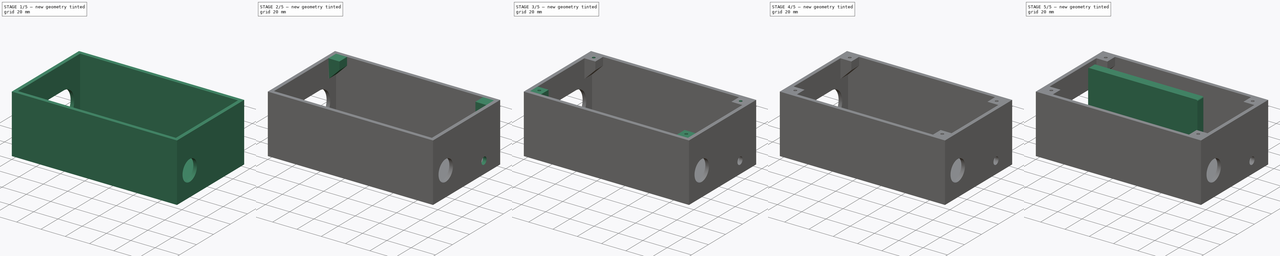
[diagram: build sequence overview — one tinted view per stage of 5, left to right]
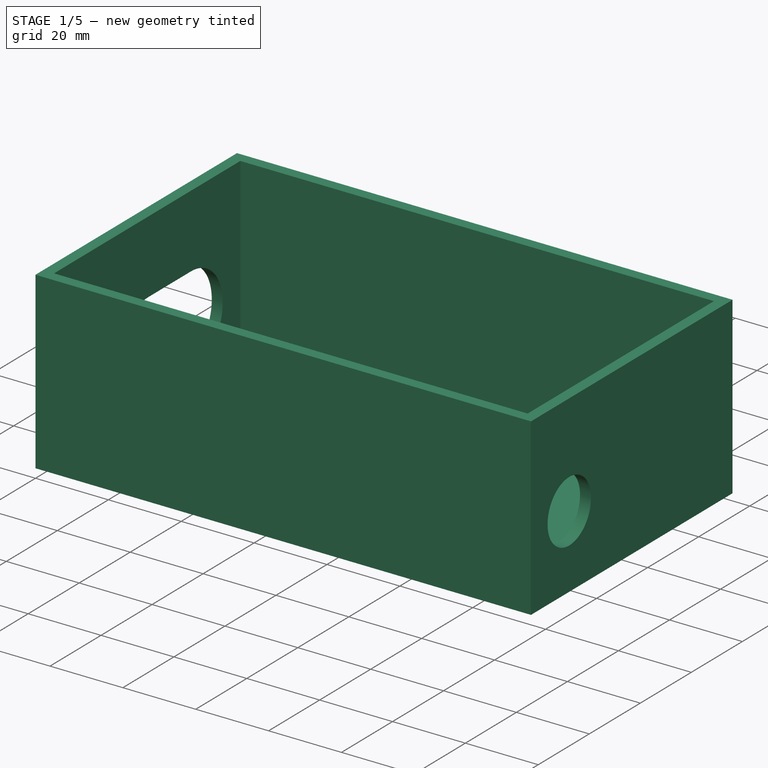
[diagram: stage 1 of 5 — iso view after this stage's code; geometry added in this stage tinted green]
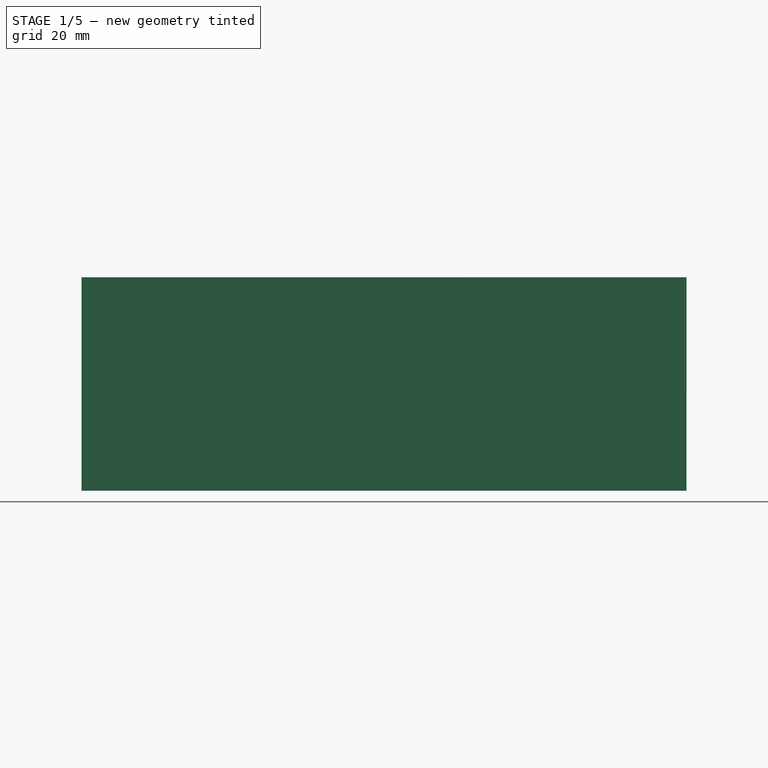
[diagram: stage 1 of 5 — front view after this stage's code; geometry added in this stage tinted green]
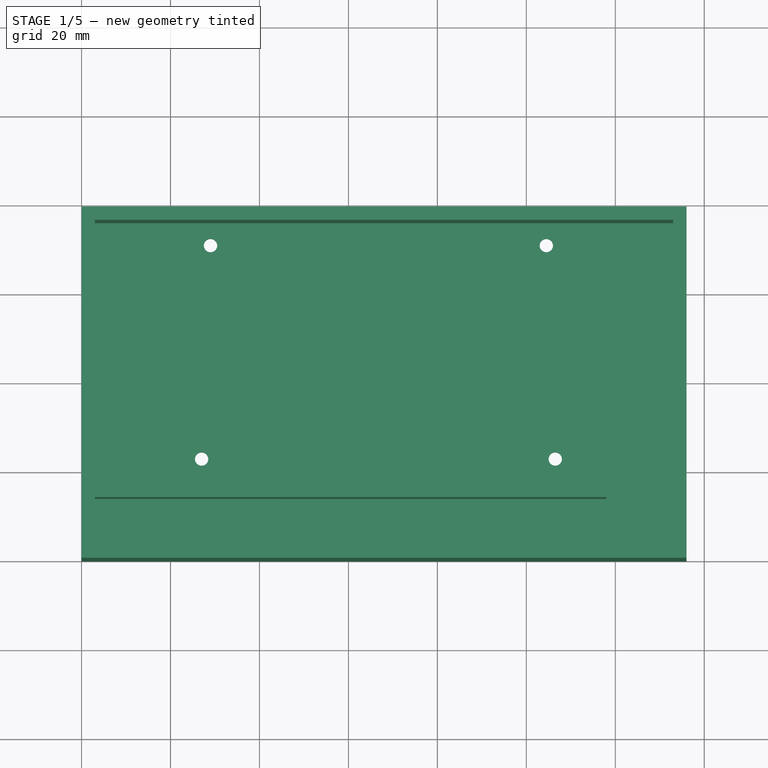
[diagram: stage 1 of 5 — top view after this stage's code; geometry added in this stage tinted green]
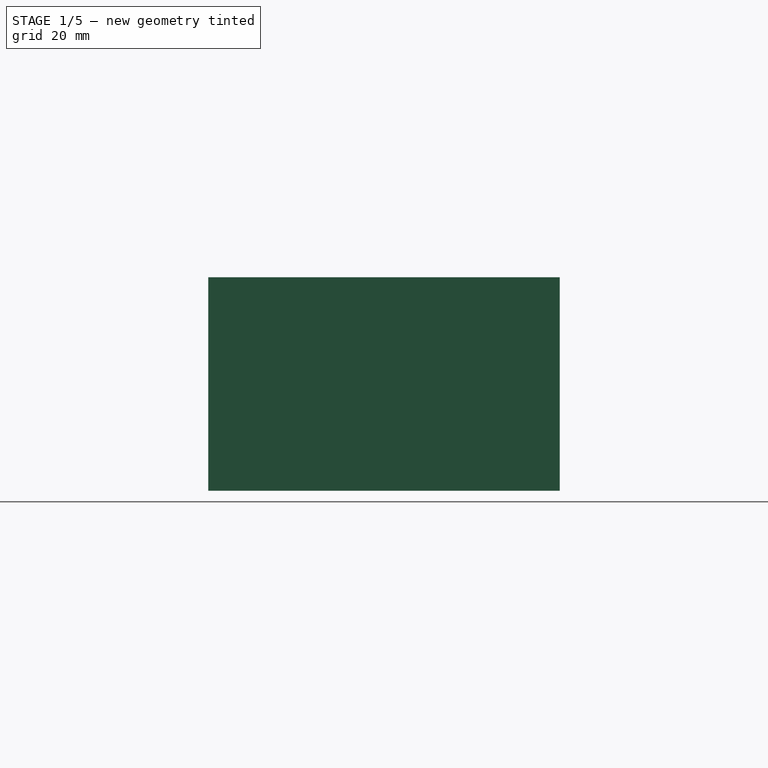
[diagram: stage 1 of 5 — right view after this stage's code; geometry added in this stage tinted green]
FCSTD DOCUMENT  (FreeCAD 0.19R24291 (Git))
Label: Proto_V3
License: All rights reserved
LicenseURL: http://en.wikipedia.org/wiki/All_rights_reserved
objects: Sketcher::SketchObject×16, PartDesign::Pad×8, PartDesign::Pocket×6, PartDesign::Fillet×6, PartDesign::Chamfer×6, PartDesign::Hole×2, PartDesign::Body×2
note: 74 computed .brp shape members not serialized (recipe doc carries the construction recipe); baked Part::Feature solids carry a one-line shape summary decoded from their .brp

FEATURE [Sketcher::SketchObject] Sketch  label="Countour"
  FullyConstrained = true
  MapMode = 5
  Support = -> [XY_Plane001]
  sketch-geometry (12):
    g0: LineSegment StartX=0 StartY=0 StartZ=0 EndX=136 EndY=0 EndZ=0
    g1: LineSegment StartX=136 StartY=0 StartZ=0 EndX=136 EndY=79 EndZ=0
    g2: LineSegment StartX=136 StartY=79 StartZ=0 EndX=0 EndY=79 EndZ=0
    g3: LineSegment StartX=0 StartY=79 StartZ=0 EndX=0 EndY=0 EndZ=0
    g4: GeomPoint X=3 Y=76 Z=0
    g5: GeomPoint X=133 Y=76 Z=0
    g6: GeomPoint X=133 Y=3 Z=0
    g7: GeomPoint X=3 Y=3 Z=0
    g8: LineSegment StartX=3 StartY=3 StartZ=0 EndX=133 EndY=3 EndZ=0
    g9: LineSegment StartX=133 StartY=3 StartZ=0 EndX=133 EndY=76 EndZ=0
    g10: LineSegment StartX=133 StartY=76 StartZ=0 EndX=3 EndY=76 EndZ=0
    g11: LineSegment StartX=3 StartY=76 StartZ=0 EndX=3 EndY=3 EndZ=0
  constraints (27):
    c: Coincident(g0,g1)
    c: Coincident(g1,g2)
    c: Coincident(g2,g3)
    c: Coincident(g3,g0)
    c: Horizontal(g0)
    c: Horizontal(g2)
    c: Vertical(g1)
    c: Vertical(g3)
    c: Coincident(g0,g-1)
    c: DistanceX(g2,g2) = 136
    c: DistanceY(g3,g3) = 79
    c: DistanceX(g4) = 3
    c: DistanceY(g4) = 76
    c: DistanceX(g5) = 133
    c: DistanceY(g5) = 76
    c: DistanceX(g6) = 133
    c: DistanceY(g6) = 3
    c: DistanceX(g7) = 3
    c: DistanceY(g7) = 3
    c: Coincident(g8,g7)
    c: Coincident(g8,g6)
    c: Coincident(g9,g8)
    c: Coincident(g9,g5)
    c: Coincident(g10,g9)
    c: Coincident(g10,g4)
    c: Coincident(g11,g10)
    c: Coincident(g11,g8)
FEATURE [Sketcher::SketchObject] Sketch001  label="Fond"
  FullyConstrained = true
  MapMode = 5
  Support = -> [XY_Plane001]
  sketch-geometry (4):
    g0: LineSegment StartX=0 StartY=0 StartZ=0 EndX=136 EndY=0 EndZ=0
    g1: LineSegment StartX=136 StartY=0 StartZ=0 EndX=136 EndY=79 EndZ=0
    g2: LineSegment StartX=136 StartY=79 StartZ=0 EndX=0 EndY=79 EndZ=0
    g3: LineSegment StartX=0 StartY=79 StartZ=0 EndX=0 EndY=0 EndZ=0
  constraints (11):
    c: Coincident(g0,g1)
    c: Coincident(g1,g2)
    c: Coincident(g2,g3)
    c: Coincident(g3,g0)
    c: Horizontal(g0)
    c: Horizontal(g2)
    c: Vertical(g1)
    c: Vertical(g3)
    c: Coincident(g0,g-1)
    c: DistanceX(g2,g2) = 136
    c: DistanceY(g1,g1) = 79
FEATURE [PartDesign::Pad] Pad  label="Pad_fond"
  Direction = (1,1,1)
  Length = 3
  Length2 = 100
  Profile = -> Sketch001
  Type = 0
FEATURE [PartDesign::Pad] Pad001  label="Pad_contour"
  BaseFeature = -> Pad
  Direction = (1,1,1)
  Length = 48
  Length2 = 100
  Profile = -> Sketch
  Type = 0
FEATURE [Sketcher::SketchObject] Sketch002  label="Barrière"
  FullyConstrained = true
  MapMode = 5
  Support = -> [XY_Plane001]
  sketch-geometry (4):
    g0: LineSegment StartX=3 StartY=17 StartZ=0 EndX=118 EndY=17 EndZ=0
    g1: LineSegment StartX=118 StartY=17 StartZ=0 EndX=118 EndY=14 EndZ=0
    g2: LineSegment StartX=118 StartY=14 StartZ=0 EndX=3 EndY=14 EndZ=0
    g3: LineSegment StartX=3 StartY=14 StartZ=0 EndX=3 EndY=17 EndZ=0
  constraints (12):
    c: Coincident(g0,g1)
    c: Coincident(g1,g2)
    c: Coincident(g2,g3)
    c: Coincident(g3,g0)
    c: Horizontal(g0)
    c: Horizontal(g2)
    c: Vertical(g1)
    c: Vertical(g3)
    c: DistanceY(g1,g1) = 3
    c: DistanceX(g2,g2) = 115
    c: DistanceY(g-1,g2) = 14
    c: DistanceX(g-1,g2) = 3
FEATURE [PartDesign::Pad] Pad002  label="Pad_barrière"
  BaseFeature = -> Pad001
  Direction = (1,1,1)
  Length = 30
  Length2 = 100
  Profile = -> Sketch002
  Type = 0
FEATURE [Sketcher::SketchObject] Sketch003  label="Trous_fond"
  FullyConstrained = true
  MapMode = 5
  Support = -> [XY_Plane001]
  sketch-geometry (8):
    g0: GeomPoint X=29 Y=71 Z=0
    g1: GeomPoint X=104.5 Y=71 Z=0
    g2: GeomPoint X=106.5 Y=23 Z=0
    g3: GeomPoint X=27 Y=23 Z=0
    g4: Circle CenterX=29 CenterY=71 CenterZ=0 NormalX=0 NormalY=0 NormalZ=1 AngleXU=0 Radius=1.5
    g5: Circle CenterX=104.5 CenterY=71 CenterZ=0 NormalX=0 NormalY=0 NormalZ=1 AngleXU=0 Radius=1.5
    g6: Circle CenterX=27 CenterY=23 CenterZ=0 NormalX=0 NormalY=0 NormalZ=1 AngleXU=0 Radius=1.5
    g7: Circle CenterX=106.5 CenterY=23 CenterZ=0 NormalX=0 NormalY=0 NormalZ=1 AngleXU=0 Radius=1.5
  constraints (16):
    c: DistanceX(g0) = 29
    c: DistanceY(g0) = 71
    c: DistanceX(g1) = 104.5
    c: DistanceY(g1) = 71
    c: Coincident(g4,g0)
    c: Coincident(g5,g1)
    c: Coincident(g6,g3)
    c: Coincident(g7,g2)
    c: Radius(g4) = 1.5
    c: Radius(g5) = 1.5
    c: Radius(g6) = 1.5
    c: Radius(g7) = 1.5
    c: DistanceY(g7,g5) = 48
    c: DistanceX(g5,g7) = 2
    c: DistanceY(g6,g4) = 48
    c: DistanceX(g6,g4) = 2
FEATURE [PartDesign::Pocket] Pocket  label="Trous_arduino"
  BaseFeature = -> Pad002
  Length = 5
  Length2 = 100
  Profile = -> Sketch003
  Reversed = true
  Type = 1
FEATURE [Sketcher::SketchObject] Sketch004  label="Ouverture"
  FullyConstrained = false
  MapMode = 5
  Placement = pos=(0,0,0) rot=(0.57735,0.57735,0.57735;2.0944rad)
  Support = -> [YZ_Plane001]
  sketch-geometry (4):
    g0: ArcOfCircle CenterX=40 CenterY=15.5 CenterZ=0 NormalX=0 NormalY=0 NormalZ=1 AngleXU=0 Radius=12.5 StartAngle=1.5708 EndAngle=4.71239
    g1: ArcOfCircle CenterX=56.6016 CenterY=15.5 CenterZ=0 NormalX=0 NormalY=0 NormalZ=1 AngleXU=0 Radius=12.5 StartAngle=4.71239 EndAngle=7.85398
    g2: LineSegment StartX=40 StartY=3 StartZ=0 EndX=56.6016 EndY=3 EndZ=0
    g3: LineSegment StartX=40 StartY=28 StartZ=0 EndX=56.6016 EndY=28 EndZ=0
  constraints (9):
    c: Tangent(g0,g3) = 1.5708
    c: Tangent(g0,g2) = -1.5708
    c: Tangent(g2,g1) = -1.5708
    c: Tangent(g3,g1) = 1.5708
    c: Horizontal(g2)
    c: Equal(g0,g1)
    c: DistanceY(g-1,g0) = 3
    c: DistanceX(g-1,g0) = 40
    c: DistanceY(g1,g1) = 25
FEATURE [PartDesign::Pocket] Pocket001  label="Trou_ouverture"
  BaseFeature = -> Pocket
  Length = 0
  Length2 = 100
  Profile = -> Sketch004
  Reversed = true
  Type = 2
FEATURE [Sketcher::SketchObject] Sketch006  label="Cablage_batterie"
  FullyConstrained = true
  MapMode = 5
  Placement = pos=(136,0,0) rot=(0.57735,0.57735,0.57735;2.0944rad)
  Support = -> [Pocket001]
  sketch-geometry (2):
    g0: GeomPoint X=15 Y=20 Z=0
    g1: Circle CenterX=15 CenterY=20 CenterZ=0 NormalX=0 NormalY=0 NormalZ=1 AngleXU=0 Radius=8.5
  constraints (4):
    c: DistanceX(g0) = 15
    c: DistanceY(g0) = 20
    c: Coincident(g1,g0)
    c: Radius(g1) = 8.5
FEATURE [PartDesign::Pocket] Pocket002  label="Trou_cablage"
  BaseFeature = -> Pocket001
  Length = 5
  Length2 = 100
  Profile = -> Sketch006
  Type = 2
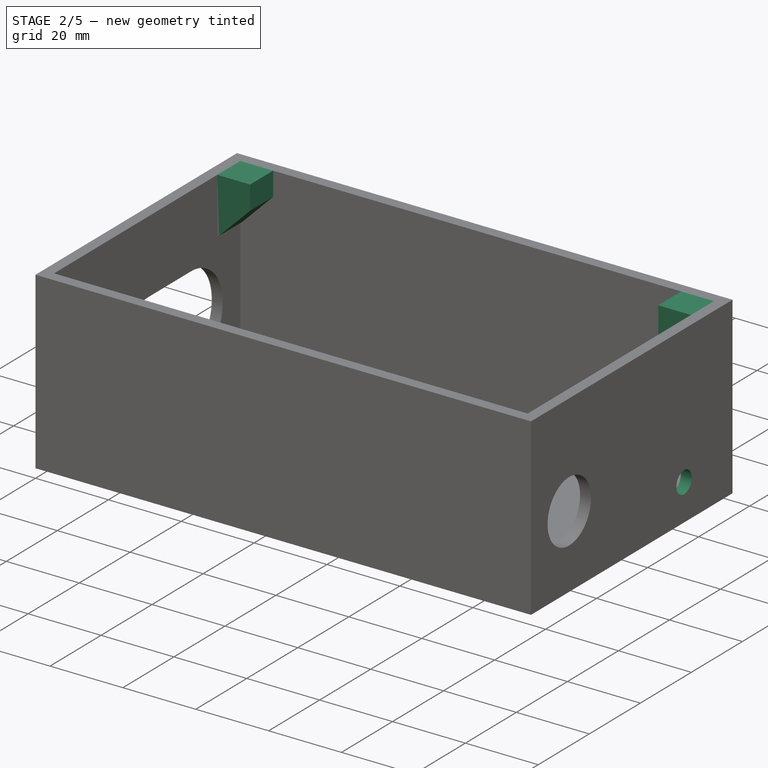
[diagram: stage 2 of 5 — iso view after this stage's code; geometry added in this stage tinted green]
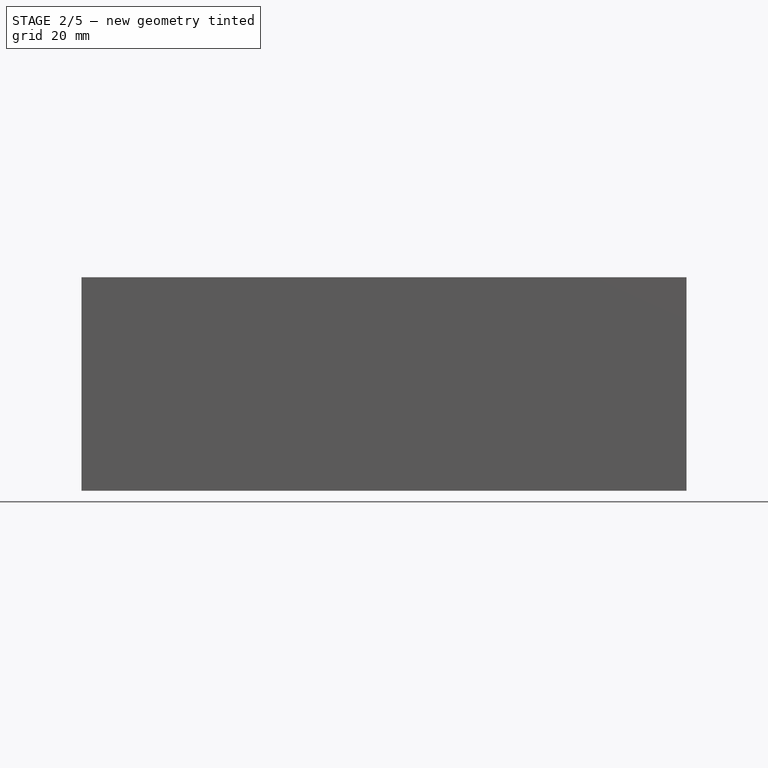
[diagram: stage 2 of 5 — front view after this stage's code; geometry added in this stage tinted green]
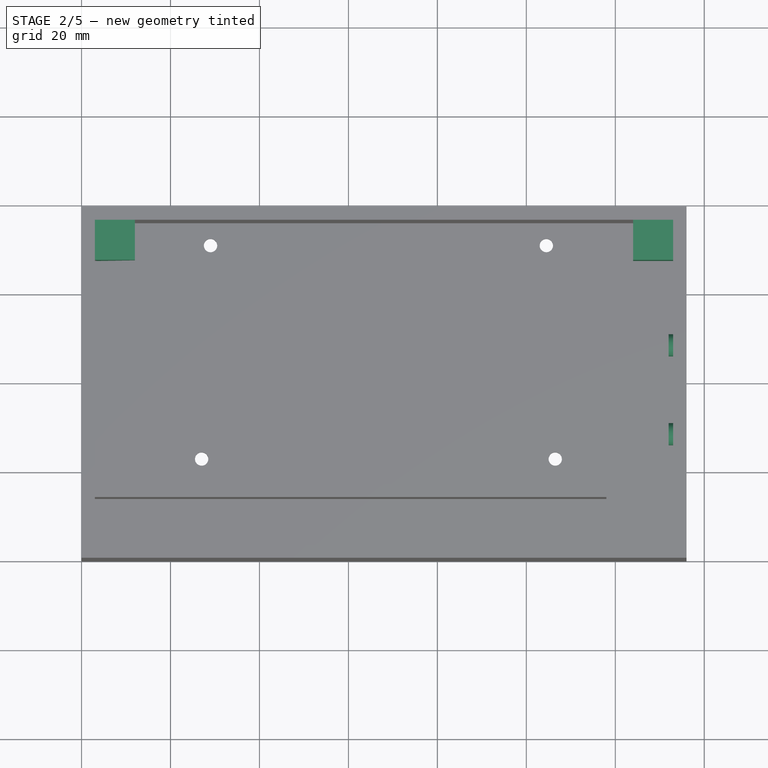
[diagram: stage 2 of 5 — top view after this stage's code; geometry added in this stage tinted green]
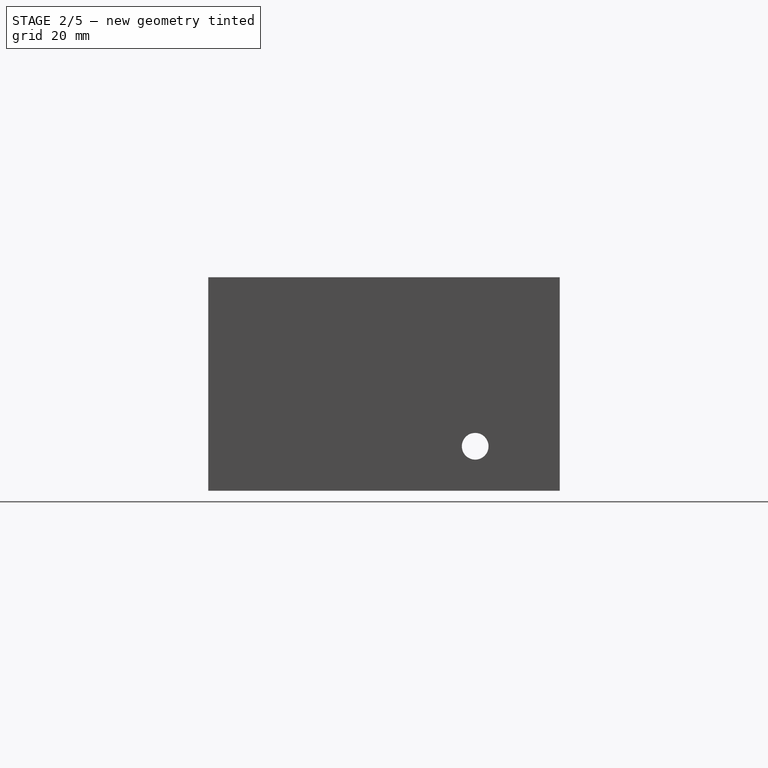
[diagram: stage 2 of 5 — right view after this stage's code; geometry added in this stage tinted green]
FEATURE [Sketcher::SketchObject] Sketch007  label="Interrupteur"
  FullyConstrained = true
  MapMode = 5
  Placement = pos=(136,0,0) rot=(0.57735,0.57735,0.57735;2.0944rad)
  Support = -> [Pocket002]
  sketch-geometry (2):
    g0: GeomPoint X=60 Y=10 Z=0
    g1: Circle CenterX=60 CenterY=10 CenterZ=0 NormalX=0 NormalY=0 NormalZ=1 AngleXU=0 Radius=3
  constraints (4):
    c: DistanceX(g0) = 60
    c: DistanceY(g0) = 10
    c: Coincident(g1,g0)
    c: Radius(g1) = 3
FEATURE [PartDesign::Pocket] Pocket003  label="Trou_interrupteur"
  BaseFeature = -> Pocket002
  Length = 5
  Length2 = 100
  Profile = -> Sketch007
  Type = 2
FEATURE [Sketcher::SketchObject] Sketch008  label="IMU"
  FullyConstrained = true
  MapMode = 5
  Placement = pos=(133,0,0) rot=(0.57735,-0.57735,-0.57735;2.0944rad)
  Support = -> [Pocket003]
  sketch-geometry (4):
    g0: GeomPoint X=-48 Y=35 Z=0
    g1: GeomPoint X=-28 Y=35 Z=0
    g2: Circle CenterX=-48 CenterY=35 CenterZ=0 NormalX=0 NormalY=0 NormalZ=1 AngleXU=0 Radius=1.25
    g3: Circle CenterX=-28 CenterY=35 CenterZ=0 NormalX=0 NormalY=0 NormalZ=1 AngleXU=0 Radius=1.25
  constraints (8):
    c: DistanceX(g0) = -48
    c: DistanceY(g0) = 35
    c: DistanceX(g1) = -28
    c: DistanceY(g1) = 35
    c: Coincident(g2,g0)
    c: Coincident(g3,g1)
    c: Radius(g2) = 1.25
    c: Radius(g3) = 1.25
FEATURE [Sketcher::SketchObject] Sketch009  label="Support_IMU"
  FullyConstrained = true
  MapMode = 5
  Placement = pos=(133,0,0) rot=(0.57735,-0.57735,-0.57735;2.0944rad)
  Support = -> [Pocket003]
  sketch-geometry (4):
    g0: GeomPoint X=-48 Y=35 Z=0
    g1: GeomPoint X=-28 Y=35 Z=0
    g2: Circle CenterX=-48 CenterY=35 CenterZ=0 NormalX=0 NormalY=0 NormalZ=1 AngleXU=0 Radius=2.5
    g3: Circle CenterX=-28 CenterY=35 CenterZ=0 NormalX=0 NormalY=0 NormalZ=1 AngleXU=0 Radius=2.5
  constraints (8):
    c: DistanceX(g0) = -48
    c: DistanceY(g0) = 35
    c: DistanceX(g1) = -28
    c: DistanceY(g1) = 35
    c: Coincident(g2,g0)
    c: Coincident(g3,g1)
    c: Radius(g2) = 2.5
    c: Radius(g3) = 2.5
FEATURE [PartDesign::Pad] Pad003  label="Pad_IMU"
  BaseFeature = -> Pocket003
  Direction = (1,1,1)
  Length = 1
  Length2 = 100
  Profile = -> Sketch009
  Type = 0
FEATURE [PartDesign::Pocket] Pocket004  label="Trous_IMU"
  BaseFeature = -> Pad003
  Length = 5
  Length2 = 100
  Profile = -> Sketch008
  Reversed = true
  Type = 0
FEATURE [Sketcher::SketchObject] Sketch010  label="Support_couvercleD"
  FullyConstrained = true
  MapMode = 5
  Placement = pos=(0,76,0) rot=(1,0,0;1.5708rad)
  sketch-geometry (10):
    g0: GeomPoint X=3 Y=48 Z=0
    g1: LineSegment StartX=3 StartY=48 StartZ=0 EndX=12 EndY=48 EndZ=0
    g2: LineSegment StartX=12 StartY=48 StartZ=0 EndX=12 EndY=33 EndZ=0
    g3: LineSegment StartX=12 StartY=33 StartZ=0 EndX=3 EndY=33 EndZ=0
    g4: LineSegment StartX=3 StartY=33 StartZ=0 EndX=3 EndY=48 EndZ=0
    g5: GeomPoint X=133 Y=48 Z=0
    g6: LineSegment StartX=133 StartY=48 StartZ=0 EndX=124 EndY=48 EndZ=0
    g7: LineSegment StartX=124 StartY=48 StartZ=0 EndX=124 EndY=33 EndZ=0
    g8: LineSegment StartX=124 StartY=33 StartZ=0 EndX=133 EndY=33 EndZ=0
    g9: LineSegment StartX=133 StartY=33 StartZ=0 EndX=133 EndY=48 EndZ=0
  constraints (26):
    c: DistanceX(g0) = 3
    c: DistanceY(g0) = 48
    c: Coincident(g1,g2)
    c: Coincident(g2,g3)
    c: Coincident(g3,g4)
    c: Coincident(g4,g1)
    c: Horizontal(g1)
    c: Horizontal(g3)
    c: Vertical(g2)
    c: Vertical(g4)
    c: Coincident(g1,g0)
    c: DistanceX(g1,g1) = 9
    c: DistanceY(g2,g2) = 15
    c: DistanceX(g5) = 133
    c: DistanceY(g5) = 48
    c: Coincident(g6,g7)
    c: Coincident(g7,g8)
    c: Coincident(g8,g9)
    c: Coincident(g9,g6)
    c: Horizontal(g6)
    c: Horizontal(g8)
    c: Vertical(g7)
    c: Vertical(g9)
    c: Coincident(g6,g5)
    c: DistanceY(g7,g7) = 15
    c: DistanceX(g8,g8) = 9
FEATURE [PartDesign::Pad] Pad004  label="Pad_couvercleD"
  BaseFeature = -> Pocket004
  Direction = (1,1,1)
  Length = 9
  Length2 = 100
  Profile = -> Sketch010
  Type = 0
FEATURE [PartDesign::Body] Body  label="Couvercle"
  Group = -> [Sketch013,Pad006,Sketch014,Hole001,Sketch016,Pad007,Sketch017,Pocket005,Fillet006,Fillet007,Fillet008,Fillet009]
  Origin = -> Origin
  Placement = pos=(0,0,150) rot=(0,0,1;0rad)
  Tip = -> Fillet009
FEATURE [PartDesign::Chamfer] Chamfer
  Angle = 45
  Base = -> Pad004 [Edge104]
  BaseFeature = -> Pad004
  ChamferType = 0
  FlipDirection = false
  Size = 8.5
  Size2 = 1
  SupportTransform = false
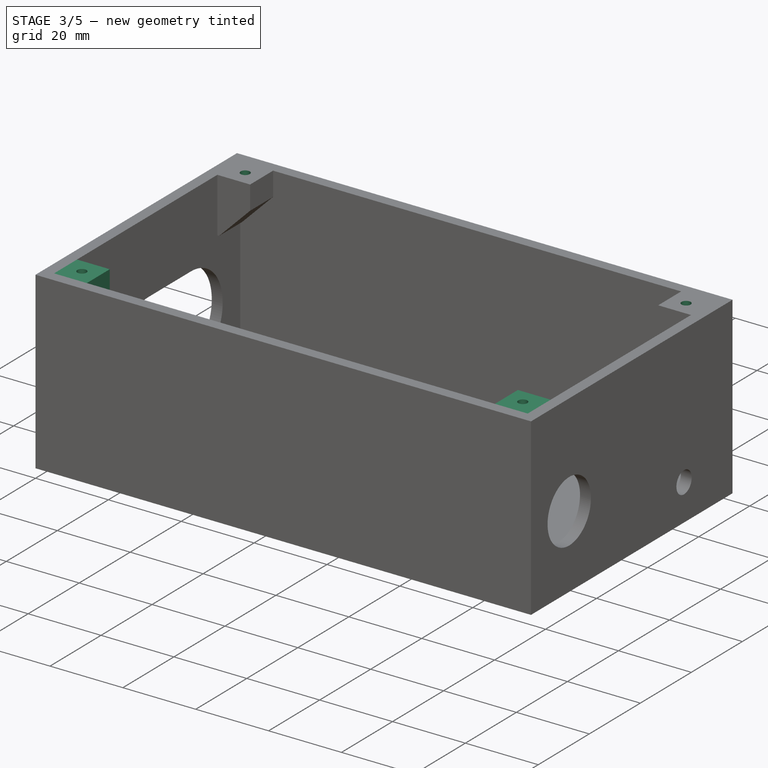
[diagram: stage 3 of 5 — iso view after this stage's code; geometry added in this stage tinted green]
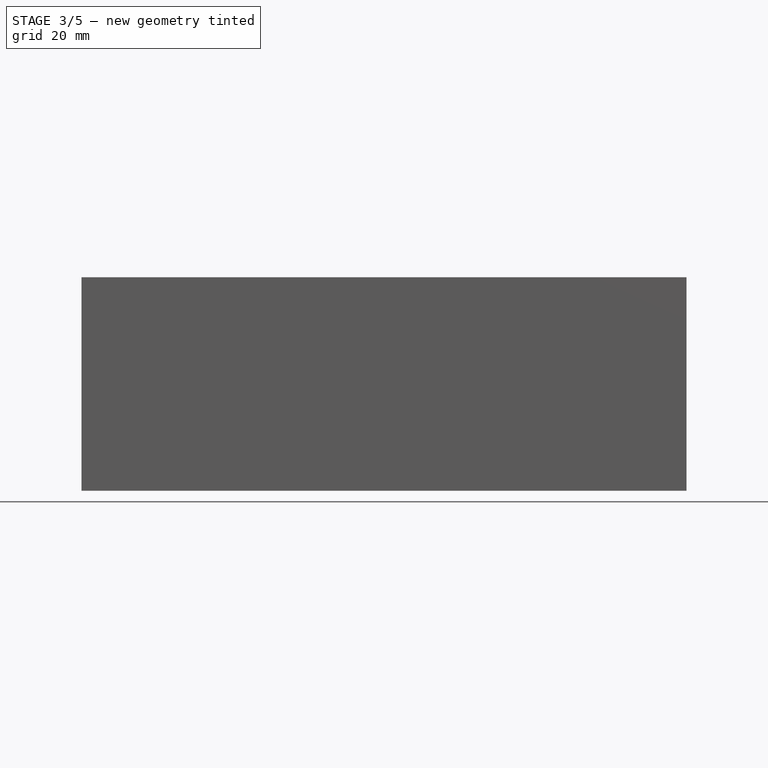
[diagram: stage 3 of 5 — front view after this stage's code; geometry added in this stage tinted green]
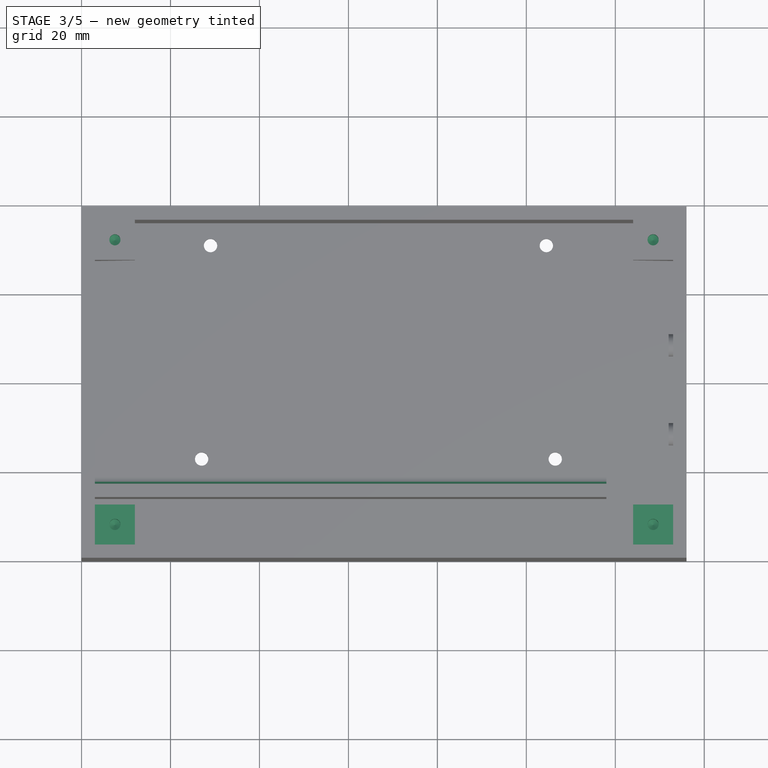
[diagram: stage 3 of 5 — top view after this stage's code; geometry added in this stage tinted green]
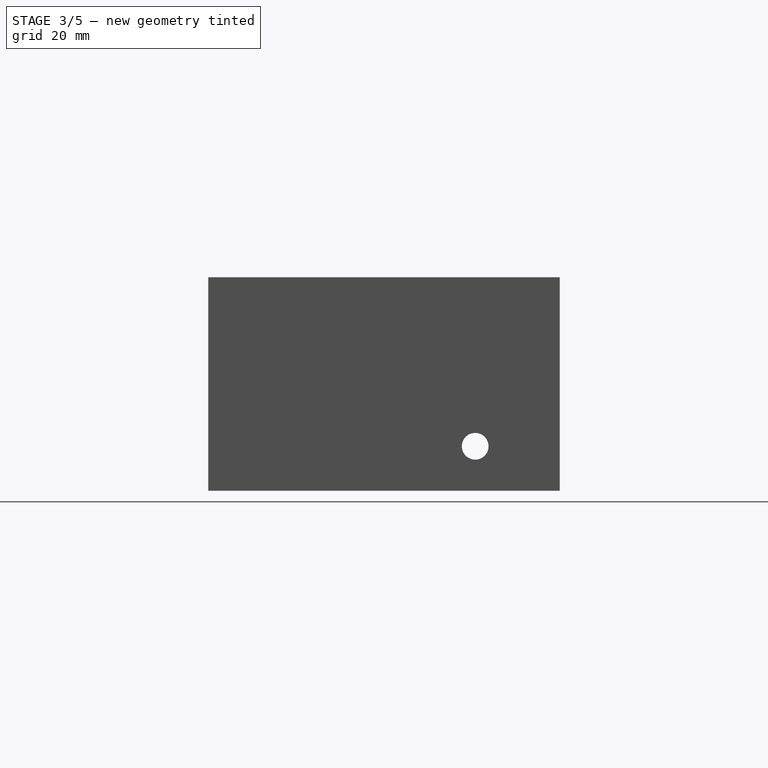
[diagram: stage 3 of 5 — right view after this stage's code; geometry added in this stage tinted green]
FEATURE [PartDesign::Chamfer] Chamfer001
  Angle = 45
  Base = -> Chamfer [Edge57]
  BaseFeature = -> Chamfer
  ChamferType = 0
  FlipDirection = false
  Size = 8.5
  Size2 = 1
  SupportTransform = false
FEATURE [Sketcher::SketchObject] Sketch011  label="Support_couvercleG"
  FullyConstrained = true
  MapMode = 5
  Placement = pos=(0,3,0) rot=(0,0.707107,0.707107;3.14159rad)
  Support = -> [Chamfer001]
  sketch-geometry (10):
    g0: GeomPoint X=-133 Y=48 Z=0
    g1: GeomPoint X=-3 Y=48 Z=0
    g2: LineSegment StartX=-133 StartY=48 StartZ=0 EndX=-124 EndY=48 EndZ=0
    g3: LineSegment StartX=-124 StartY=48 StartZ=0 EndX=-124 EndY=33 EndZ=0
    g4: LineSegment StartX=-124 StartY=33 StartZ=0 EndX=-133 EndY=33 EndZ=0
    g5: LineSegment StartX=-133 StartY=33 StartZ=0 EndX=-133 EndY=48 EndZ=0
    g6: LineSegment StartX=-3 StartY=48 StartZ=0 EndX=-12 EndY=48 EndZ=0
    g7: LineSegment StartX=-12 StartY=48 StartZ=0 EndX=-12 EndY=33 EndZ=0
    g8: LineSegment StartX=-12 StartY=33 StartZ=0 EndX=-3 EndY=33 EndZ=0
    g9: LineSegment StartX=-3 StartY=33 StartZ=0 EndX=-3 EndY=48 EndZ=0
  constraints (26):
    c: DistanceX(g0) = -133
    c: DistanceY(g0) = 48
    c: DistanceX(g1) = -3
    c: DistanceY(g1) = 48
    c: Coincident(g2,g3)
    c: Coincident(g3,g4)
    c: Coincident(g4,g5)
    c: Coincident(g5,g2)
    c: Horizontal(g2)
    c: Horizontal(g4)
    c: Vertical(g3)
    c: Vertical(g5)
    c: Coincident(g2,g0)
    c: Coincident(g6,g7)
    c: Coincident(g7,g8)
    c: Coincident(g8,g9)
    c: Coincident(g9,g6)
    c: Horizontal(g6)
    c: Horizontal(g8)
    c: Vertical(g7)
    c: Vertical(g9)
    c: Coincident(g6,g1)
    c: DistanceX(g4,g4) = 9
    c: DistanceX(g8,g8) = 9
    c: DistanceY(g7,g7) = 15
    c: DistanceY(g5,g5) = 15
FEATURE [PartDesign::Pad] Pad005  label="Pad_couvercleG"
  BaseFeature = -> Chamfer001
  Direction = (1,1,1)
  Length = 9
  Length2 = 100
  Profile = -> Sketch011
  Type = 0
FEATURE [PartDesign::Chamfer] Chamfer002
  Angle = 45
  Base = -> Pad005 [Edge97]
  BaseFeature = -> Pad005
  ChamferType = 0
  FlipDirection = false
  Size = 8.5
  Size2 = 1
  SupportTransform = false
FEATURE [PartDesign::Chamfer] Chamfer003
  Angle = 45
  Base = -> Chamfer002 [Edge65]
  BaseFeature = -> Chamfer002
  ChamferType = 0
  FlipDirection = false
  Size = 8.5
  Size2 = 1
  SupportTransform = false
FEATURE [Sketcher::SketchObject] Sketch012  label="Support_couv"
  FullyConstrained = true
  MapMode = 5
  Placement = pos=(0,1.07e-14,48) rot=(0,0,1;0rad)
  Support = -> [Chamfer003]
  sketch-geometry (8):
    g0: GeomPoint X=7.5 Y=71.5 Z=0
    g1: GeomPoint X=128.5 Y=71.5 Z=0
    g2: GeomPoint X=128.5 Y=7.5 Z=0
    g3: GeomPoint X=7.5 Y=7.5 Z=0
    g4: Circle CenterX=7.5 CenterY=71.5 CenterZ=0 NormalX=0 NormalY=0 NormalZ=1 AngleXU=0 Radius=2
    g5: Circle CenterX=128.5 CenterY=71.5 CenterZ=0 NormalX=0 NormalY=0 NormalZ=1 AngleXU=0 Radius=2
    g6: Circle CenterX=128.5 CenterY=7.5 CenterZ=0 NormalX=0 NormalY=0 NormalZ=1 AngleXU=0 Radius=2
    g7: Circle CenterX=7.5 CenterY=7.5 CenterZ=0 NormalX=0 NormalY=0 NormalZ=1 AngleXU=0 Radius=2
  constraints (16):
    c: DistanceX(g3) = 7.5
    c: DistanceY(g3) = 7.5
    c: DistanceX(g0) = 7.5
    c: DistanceY(g0) = 71.5
    c: DistanceX(g1) = 128.5
    c: DistanceY(g1) = 71.5
    c: DistanceX(g2) = 128.5
    c: DistanceY(g2) = 7.5
    c: Coincident(g4,g0)
    c: Coincident(g5,g1)
    c: Coincident(g6,g2)
    c: Coincident(g7,g3)
    c: Radius(g7) = 2
    c: Radius(g4) = 2
    c: Radius(g5) = 2
    c: Radius(g6) = 2
FEATURE [PartDesign::Hole] Hole  label="Filetage_couvercle"
  BaseFeature = -> Chamfer003
  Depth = 5
  DepthType = 0
  Diameter = 2.5
  DrillForDepth = false
  DrillPoint = 1
  DrillPointAngle = 118
  HoleCutCountersinkAngle = 90
  HoleCutCustomValues = false
  HoleCutDepth = 3.4
  HoleCutDiameter = 6.1
  HoleCutType = 0
  ModelActualThread = false
  Profile = -> Sketch012
  Tapered = false
  TaperedAngle = 90
  ThreadAngle = 60
  ThreadClass = 4
  ThreadCutOffInner = 0.0541266
  ThreadCutOffOuter = 0.108253
  ThreadDirection = 0
  ThreadFit = 1
  ThreadPitch = 0.5
  ThreadSize = 9
  ThreadType = 1
  Threaded = true
FEATURE [PartDesign::Fillet] Fillet
  Base = -> Hole [Edge55]
  BaseFeature = -> Hole
  Radius = 2
  SupportTransform = false
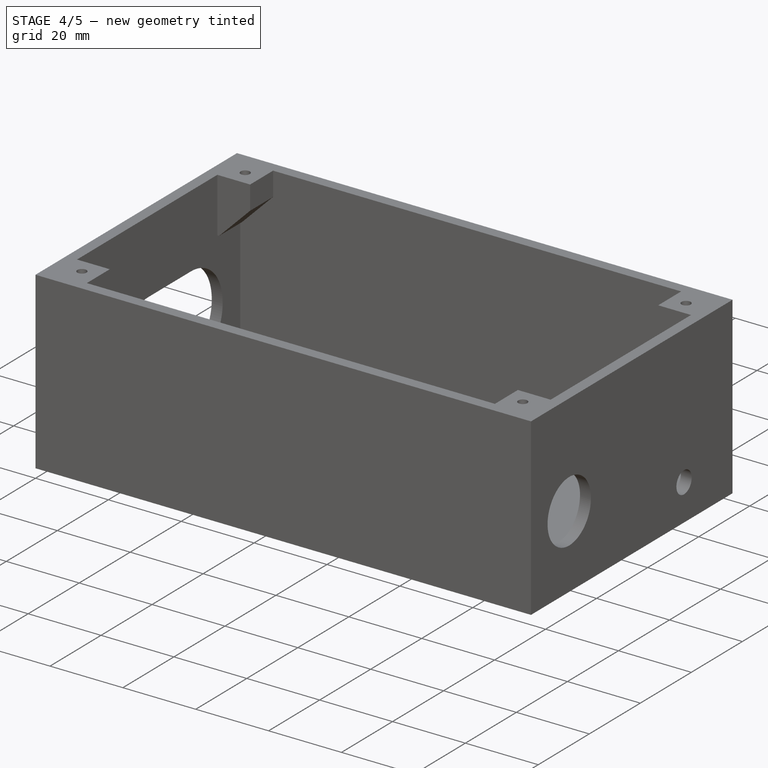
[diagram: stage 4 of 5 — iso view after this stage's code; geometry added in this stage tinted green]
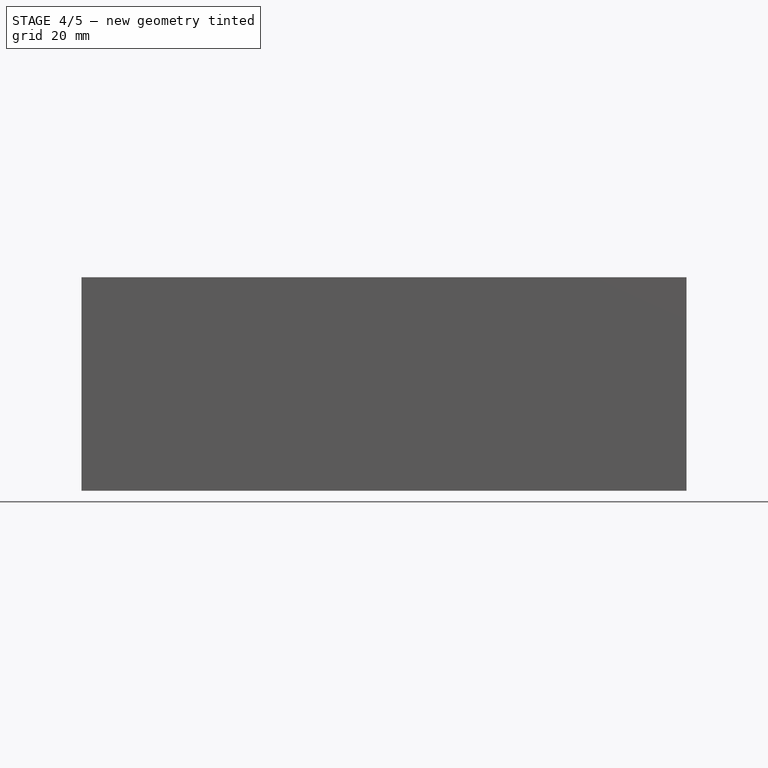
[diagram: stage 4 of 5 — front view after this stage's code; geometry added in this stage tinted green]
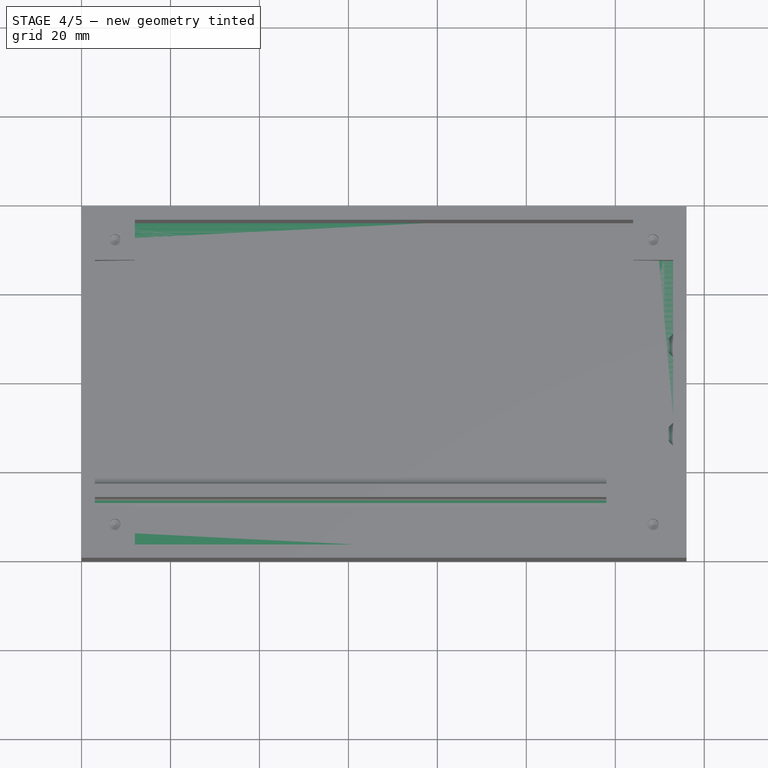
[diagram: stage 4 of 5 — top view after this stage's code; geometry added in this stage tinted green]
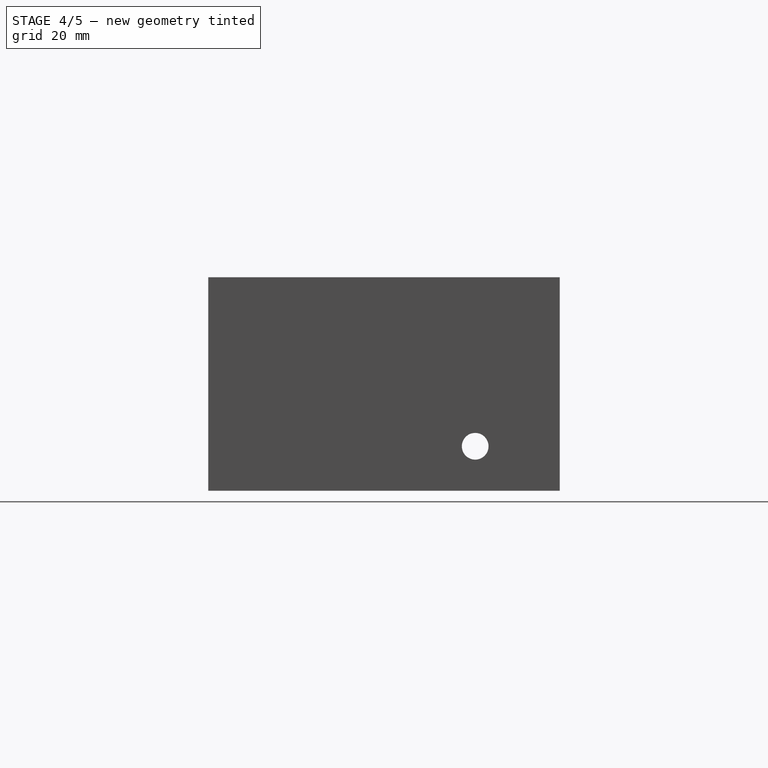
[diagram: stage 4 of 5 — right view after this stage's code; geometry added in this stage tinted green]
FEATURE [Sketcher::SketchObject] Sketch013  label="Top"
  FullyConstrained = true
  MapMode = 5
  Support = -> [XY_Plane]
  sketch-geometry (4):
    g0: LineSegment StartX=0 StartY=0 StartZ=0 EndX=136 EndY=0 EndZ=0
    g1: LineSegment StartX=136 StartY=0 StartZ=0 EndX=136 EndY=79 EndZ=0
    g2: LineSegment StartX=136 StartY=79 StartZ=0 EndX=0 EndY=79 EndZ=0
    g3: LineSegment StartX=0 StartY=79 StartZ=0 EndX=0 EndY=0 EndZ=0
  constraints (11):
    c: Coincident(g0,g1)
    c: Coincident(g1,g2)
    c: Coincident(g2,g3)
    c: Coincident(g3,g0)
    c: Horizontal(g0)
    c: Horizontal(g2)
    c: Vertical(g1)
    c: Vertical(g3)
    c: Coincident(g0,g-1)
    c: DistanceX(g2,g2) = 136
    c: DistanceY(g1,g1) = 79
FEATURE [PartDesign::Pad] Pad006  label="Plafond"
  Direction = (1,1,1)
  Length = 3
  Length2 = 100
  Profile = -> Sketch013
  Type = 0
FEATURE [Sketcher::SketchObject] Sketch014  label="Trous_fermeture"
  FullyConstrained = true
  MapMode = 5
  Placement = pos=(0,0,3) rot=(0,0,1;0rad)
  Support = -> [Pad006]
  sketch-geometry (8):
    g0: GeomPoint X=7.5 Y=71.5 Z=0
    g1: GeomPoint X=128.5 Y=71.5 Z=0
    g2: GeomPoint X=7.5 Y=7.5 Z=0
    g3: GeomPoint X=128.5 Y=7.5 Z=0
    g4: Circle CenterX=7.5 CenterY=71.5 CenterZ=0 NormalX=0 NormalY=0 NormalZ=1 AngleXU=0 Radius=2
    g5: Circle CenterX=128.5 CenterY=71.5 CenterZ=0 NormalX=0 NormalY=0 NormalZ=1 AngleXU=0 Radius=2
    g6: Circle CenterX=7.5 CenterY=7.5 CenterZ=0 NormalX=0 NormalY=0 NormalZ=1 AngleXU=0 Radius=2
    g7: Circle CenterX=128.5 CenterY=7.5 CenterZ=0 NormalX=0 NormalY=0 NormalZ=1 AngleXU=0 Radius=2
  constraints (16):
    c: DistanceX(g0) = 7.5
    c: DistanceY(g0) = 71.5
    c: DistanceX(g1) = 128.5
    c: DistanceY(g1) = 71.5
    c: DistanceX(g3) = 128.5
    c: DistanceY(g3) = 7.5
    c: DistanceX(g2) = 7.5
    c: DistanceY(g2) = 7.5
    c: Coincident(g4,g0)
    c: Coincident(g5,g1)
    c: Coincident(g6,g2)
    c: Coincident(g7,g3)
    c: Radius(g4) = 2
    c: Radius(g5) = 2
    c: Radius(g7) = 2
    c: Radius(g6) = 2
FEATURE [PartDesign::Hole] Hole001  label="Filetage_plafond"
  BaseFeature = -> Pad006
  Depth = 20
  DepthType = 1
  Diameter = 2.5
  DrillForDepth = false
  DrillPoint = 1
  DrillPointAngle = 118
  HoleCutCountersinkAngle = 90
  HoleCutCustomValues = false
  HoleCutDepth = 0
  HoleCutDiameter = 6.1
  HoleCutType = 0
  ModelActualThread = false
  Profile = -> Sketch014
  Tapered = false
  TaperedAngle = 90
  ThreadAngle = 60
  ThreadClass = 4
  ThreadCutOffInner = 0.0541266
  ThreadCutOffOuter = 0.108253
  ThreadDirection = 0
  ThreadFit = 0
  ThreadPitch = 0.5
  ThreadSize = 9
  ThreadType = 1
  Threaded = true
FEATURE [PartDesign::Fillet] Fillet010
  Base = -> Fillet [Edge23]
  BaseFeature = -> Fillet
  Radius = 2
  SupportTransform = false
FEATURE [PartDesign::Chamfer] Chamfer004
  Angle = 45
  Base = -> Fillet010 [Edge140]
  BaseFeature = -> Fillet010
  ChamferType = 0
  FlipDirection = false
  Size = 0.9
  Size2 = 1
  SupportTransform = false
FEATURE [PartDesign::Chamfer] Chamfer005
  Angle = 45
  Base = -> Chamfer004 [Edge73]
  BaseFeature = -> Chamfer004
  ChamferType = 0
  FlipDirection = false
  Size = 0.9
  Size2 = 1
  SupportTransform = false
FEATURE [PartDesign::Body] Body001  label="Socle"
  Group = -> [Sketch,Sketch001,Pad,Pad001,Sketch002,Pad002,Sketch003,Pocket,Sketch004,Pocket001,Sketch006,Pocket002,Sketch007,Pocket003,Sketch008,Sketch009,Pad003,Pocket004,Sketch010,Pad004,Chamfer,Chamfer001,Sketch011,Pad005,Chamfer002,Chamfer003,Sketch012,Hole,Fillet,Fillet010,Chamfer004,Chamfer005]
  Origin = -> Origin001
  Tip = -> Chamfer005
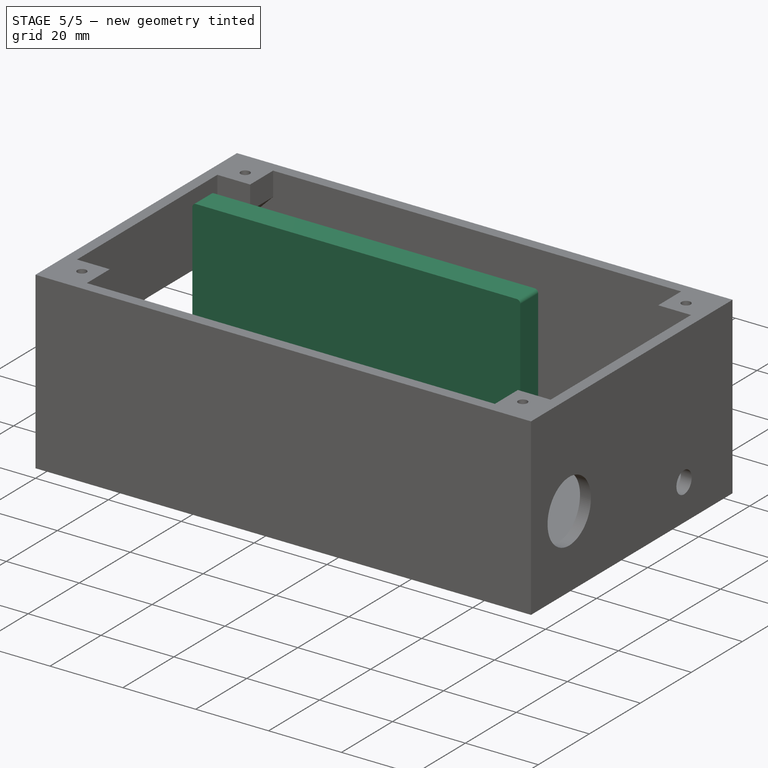
[diagram: stage 5 of 5 — iso view after this stage's code; geometry added in this stage tinted green]
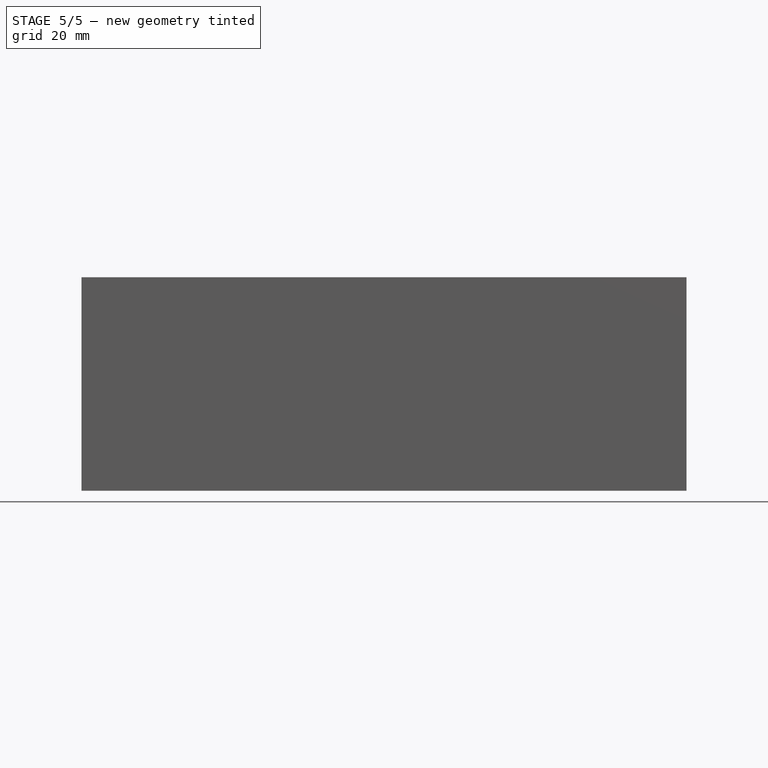
[diagram: stage 5 of 5 — front view after this stage's code; geometry added in this stage tinted green]
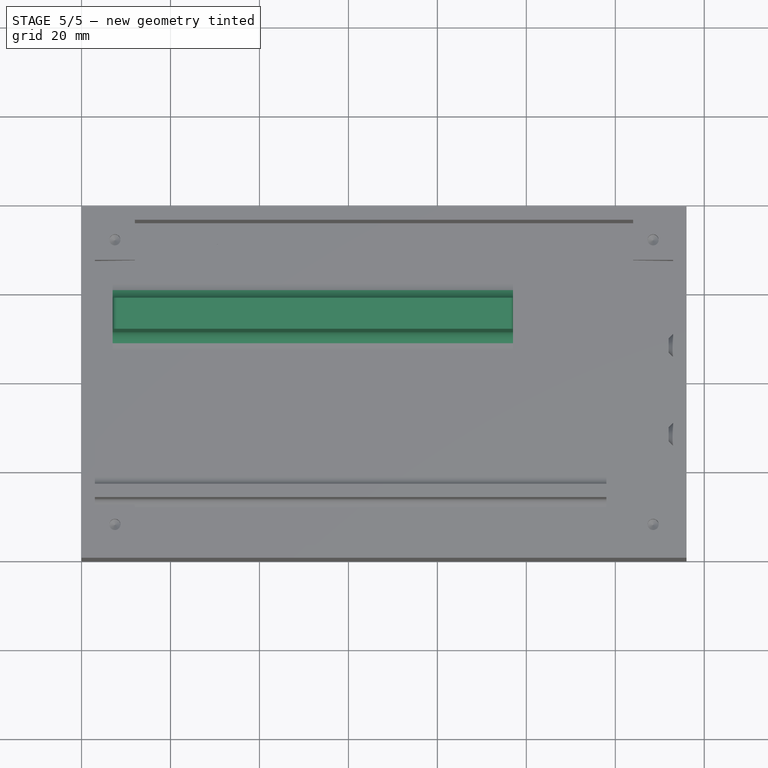
[diagram: stage 5 of 5 — top view after this stage's code; geometry added in this stage tinted green]
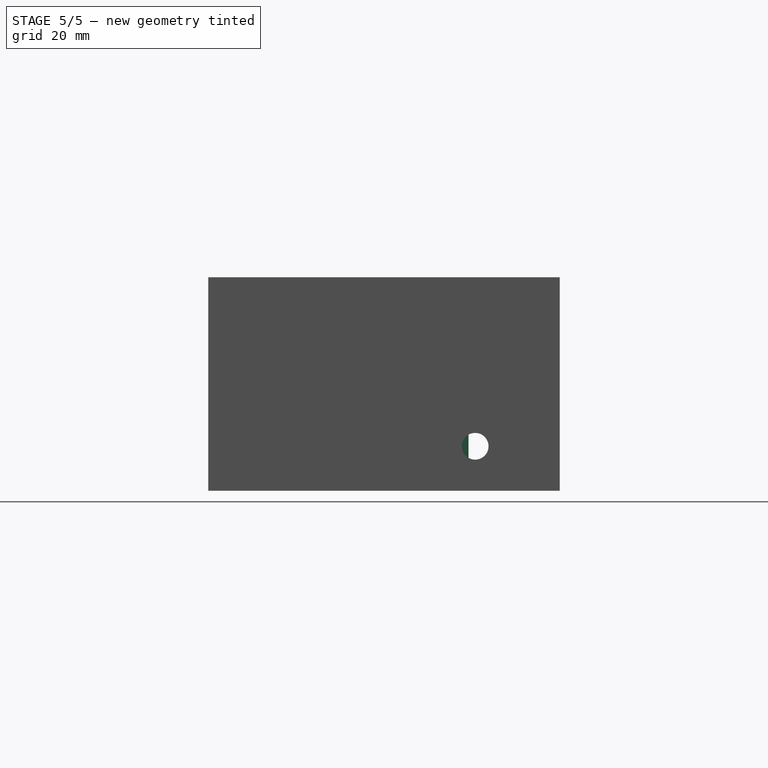
[diagram: stage 5 of 5 — right view after this stage's code; geometry added in this stage tinted green]
FEATURE [Sketcher::SketchObject] Sketch016  label="Ouverture_extru"
  FullyConstrained = true
  MapMode = 5
  Placement = pos=(0,0,3) rot=(0,0,1;0rad)
  sketch-geometry (5):
    g0: GeomPoint X=7 Y=51.5 Z=0
    g1: LineSegment StartX=7 StartY=51.5 StartZ=0 EndX=97 EndY=51.5 EndZ=0
    g2: LineSegment StartX=97 StartY=51.5 StartZ=0 EndX=97 EndY=58.5 EndZ=0
    g3: LineSegment StartX=97 StartY=58.5 StartZ=0 EndX=7 EndY=58.5 EndZ=0
    g4: LineSegment StartX=7 StartY=58.5 StartZ=0 EndX=7 EndY=51.5 EndZ=0
  constraints (13):
    c: DistanceX(g0) = 7
    c: DistanceY(g0) = 51.5
    c: Coincident(g1,g2)
    c: Coincident(g2,g3)
    c: Coincident(g3,g4)
    c: Coincident(g4,g1)
    c: Horizontal(g1)
    c: Horizontal(g3)
    c: Vertical(g2)
    c: Vertical(g4)
    c: Coincident(g1,g0)
    c: DistanceX(g3,g3) = 90
    c: DistanceY(g2,g2) = 7
FEATURE [PartDesign::Pad] Pad007  label="Antenne"
  BaseFeature = -> Hole001
  Direction = (1,1,1)
  Length = 45
  Length2 = 100
  Profile = -> Sketch016
  Type = 0
FEATURE [Sketcher::SketchObject] Sketch017  label="Ouverture_antenne"
  FullyConstrained = true
  MapMode = 5
  Placement = pos=(0,0,0) rot=(1,0,0;3.14159rad)
  Support = -> [Pad007]
  sketch-geometry (5):
    g0: GeomPoint X=8 Y=-52 Z=0
    g1: LineSegment StartX=8 StartY=-52 StartZ=0 EndX=96 EndY=-52 EndZ=0
    g2: LineSegment StartX=96 StartY=-52 StartZ=0 EndX=96 EndY=-58 EndZ=0
    g3: LineSegment StartX=96 StartY=-58 StartZ=0 EndX=8 EndY=-58 EndZ=0
    g4: LineSegment StartX=8 StartY=-58 StartZ=0 EndX=8 EndY=-52 EndZ=0
  constraints (13):
    c: DistanceX(g0) = 8
    c: DistanceY(g0) = -52
    c: Coincident(g1,g2)
    c: Coincident(g2,g3)
    c: Coincident(g3,g4)
    c: Coincident(g4,g1)
    c: Horizontal(g1)
    c: Horizontal(g3)
    c: Vertical(g2)
    c: Vertical(g4)
    c: Coincident(g1,g0)
    c: DistanceX(g1,g1) = 88
    c: DistanceY(g2,g2) = 6
FEATURE [PartDesign::Pocket] Pocket005  label="Trou_antenne"
  BaseFeature = -> Pad007
  Length = 40
  Length2 = 100
  Profile = -> Sketch017
  Type = 0
FEATURE [PartDesign::Fillet] Fillet006
  Base = -> Pocket005 [Edge23]
  BaseFeature = -> Pocket005
  Radius = 4
  SupportTransform = false
FEATURE [PartDesign::Fillet] Fillet007
  Base = -> Fillet006 [Edge4]
  BaseFeature = -> Fillet006
  Radius = 4
  SupportTransform = false
FEATURE [PartDesign::Fillet] Fillet008
  Base = -> Fillet007 [Edge19]
  BaseFeature = -> Fillet007
  Radius = 1
  SupportTransform = false
FEATURE [PartDesign::Fillet] Fillet009
  Base = -> Fillet008 [Edge33]
  BaseFeature = -> Fillet008
  Radius = 1
  SupportTransform = false
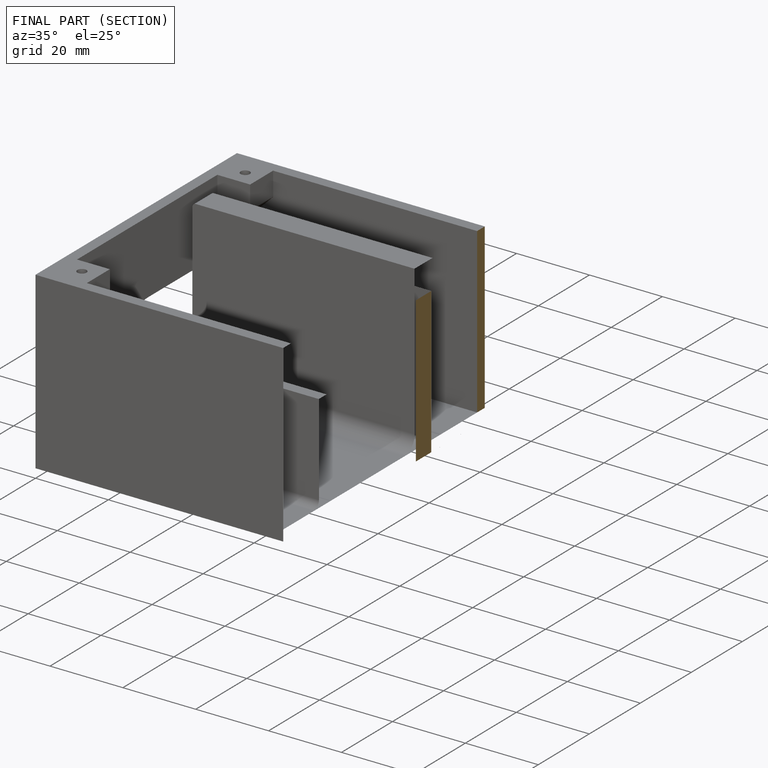
[diagram: finished part — half-section view (interior)]
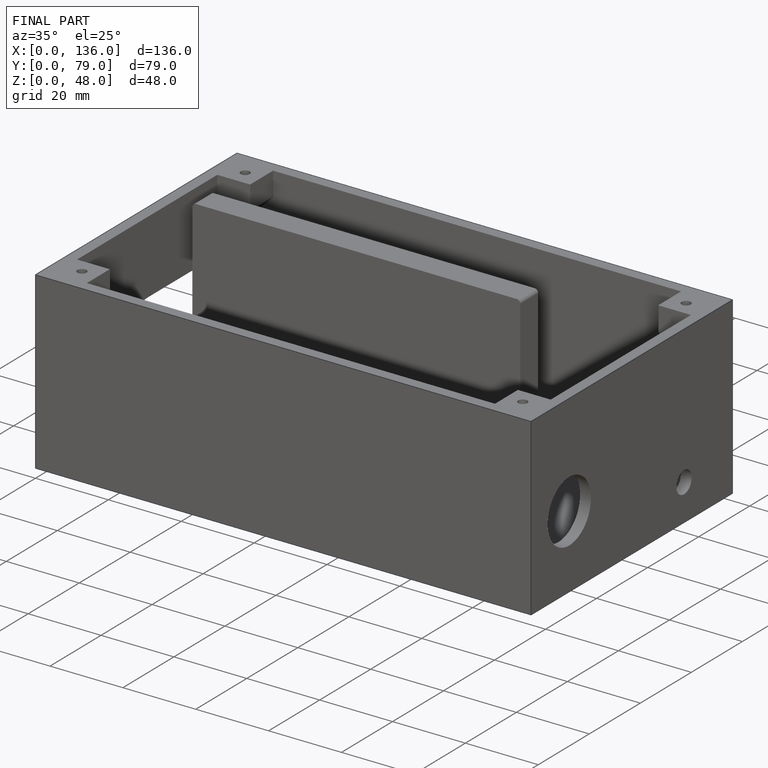
[diagram: finished part — iso view with bounding-box wireframe]
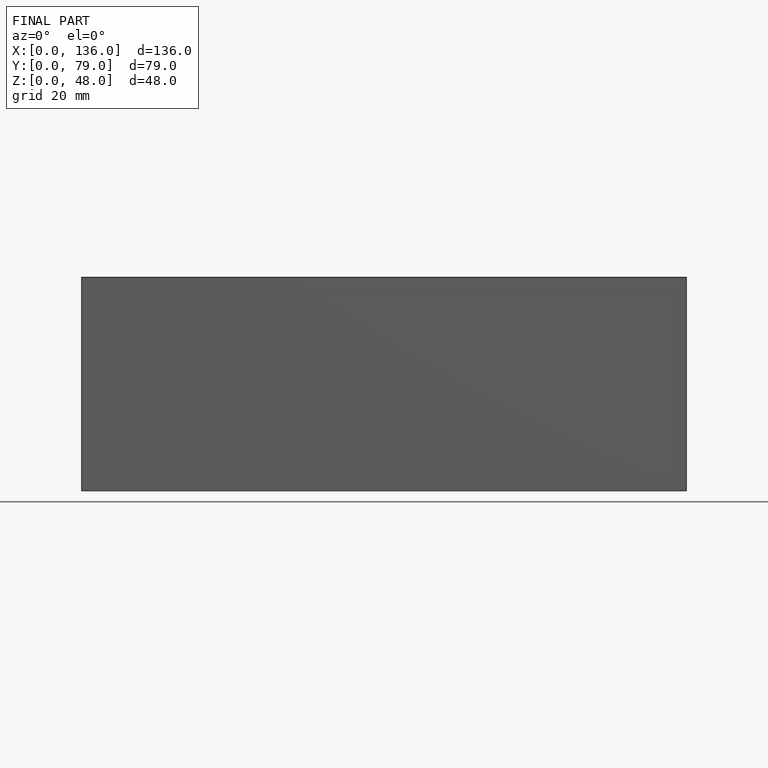
[diagram: finished part — front view with bounding-box wireframe]
